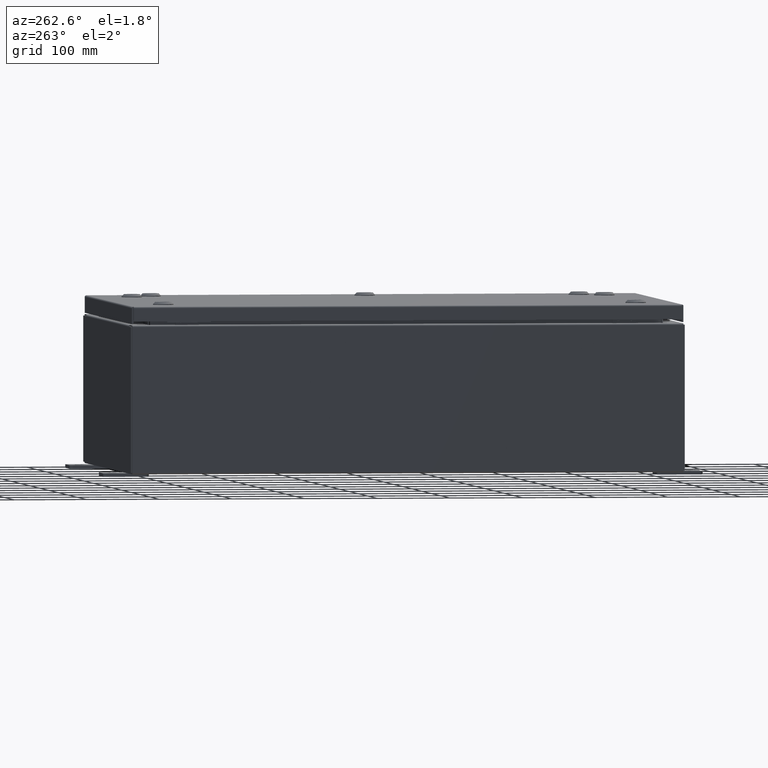
[diagram: clean part render]
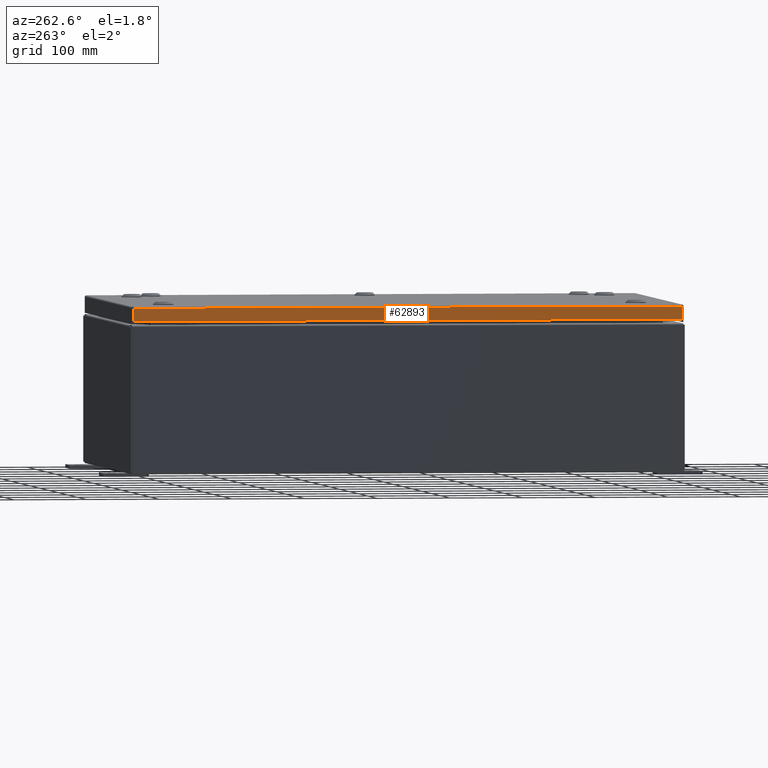
[diagram: same view with one face highlighted and labeled with its STEP entity id]
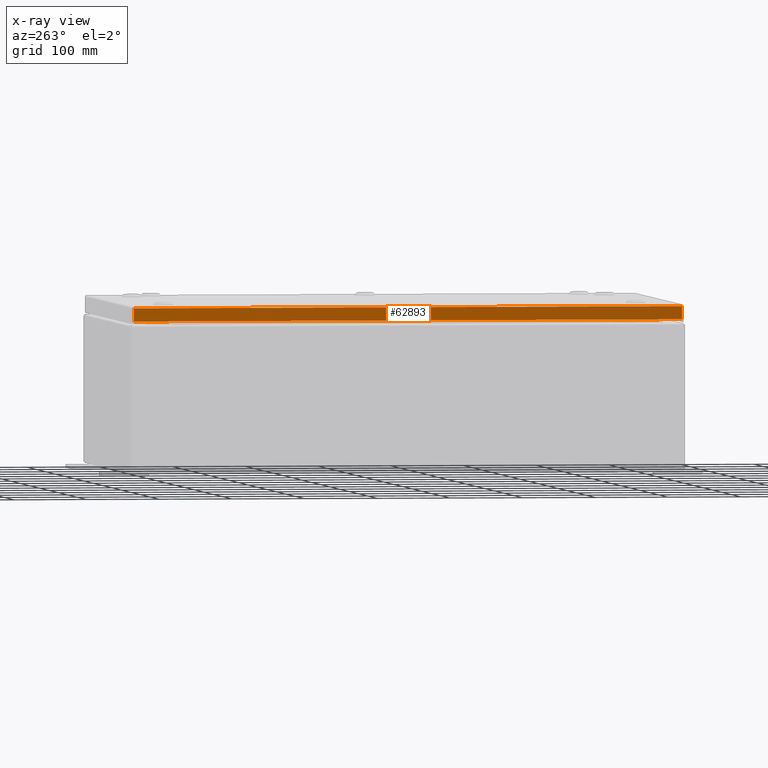
[diagram: x-ray of the same camera — body ghosted, the highlighted face saturated]
A machine part, auxiliary view. The second image highlights one B-rep face of the part: STEP entity #62893.
The next image is the same camera in x-ray: the body ghosted, the highlighted face saturated — about 0% of this face is hidden behind the body in this view.
In plain terms, the highlighted planar face has unit normal (1, 0, -0).
Its self-contained STEP definition (entity closure, byte-faithful):
#851 = LINE ( 'NONE', #19152, #27113 ) ;
#5000 = CARTESIAN_POINT ( 'NONE',  ( -9.937500000000001800, -14.84865786437626100, -0.7949999999999996000 ) ) ;
#7118 = CARTESIAN_POINT ( 'NONE',  ( -9.937500000000000000, 14.84865786437627100, 1.341000291034904900E-013 ) ) ;
#7389 = ORIENTED_EDGE ( 'NONE', *, *, #15064, .F. ) ;
#8066 = CARTESIAN_POINT ( 'NONE',  ( -9.937500000000000000, -14.84865786437626200, -0.08770000000000115200 ) ) ;
#10309 = EDGE_LOOP ( 'NONE', ( #19159, #17233, #7389, #37430 ) ) ;
#11190 = VECTOR ( 'NONE', #63432, 39.37007874015748100 ) ;
#12094 = DIRECTION ( 'NONE',  ( -3.034122441942816500E-015, 6.982962677686265900E-015, -1.000000000000000000 ) ) ;
#14709 = CARTESIAN_POINT ( 'NONE',  ( -9.937500000000000000, -7.269687547993641600E-016, 3.041240542281832100E-014 ) ) ;
#14933 = PLANE ( 'NONE',  #25389 ) ;
#15064 = EDGE_CURVE ( 'NONE', #15185, #61434, #22661, .T. ) ;
#15185 = VERTEX_POINT ( 'NONE', #5000 ) ;
#17233 = ORIENTED_EDGE ( 'NONE', *, *, #28558, .T. ) ;
#17393 = VECTOR ( 'NONE', #28861, 39.37007874015748100 ) ;
#18854 = VERTEX_POINT ( 'NONE', #8066 ) ;
#19152 = CARTESIAN_POINT ( 'NONE',  ( -9.937500000000000000, -14.93749999999999500, -0.08770000000000004200 ) ) ;
#19159 = ORIENTED_EDGE ( 'NONE', *, *, #40800, .F. ) ;
#19858 = DIRECTION ( 'NONE',  ( -3.034122441942816500E-015, 0.0000000000000000000, -1.000000000000000000 ) ) ;
#22412 = EDGE_CURVE ( 'NONE', #18854, #15185, #45241, .T. ) ;
#22661 = LINE ( 'NONE', #33660, #11190 ) ;
#23930 = CARTESIAN_POINT ( 'NONE',  ( -9.937500000000000000, -14.84865786437626400, -0.07469999999999976700 ) ) ;
#25098 = FACE_OUTER_BOUND ( 'NONE', #10309, .T. ) ;
#25389 = AXIS2_PLACEMENT_3D ( 'NONE', #14709, #49543, #19858 ) ;
#27113 = VECTOR ( 'NONE', #53813, 39.37007874015748100 ) ;
#28558 = EDGE_CURVE ( 'NONE', #45524, #61434, #37099, .T. ) ;
#28861 = DIRECTION ( 'NONE',  ( -3.034122441942816500E-015, 6.982962677686265900E-015, -1.000000000000000000 ) ) ;
#33660 = CARTESIAN_POINT ( 'NONE',  ( -9.937500000000001800, -14.93749999999999500, -0.7949999999999997100 ) ) ;
#37099 = LINE ( 'NONE', #7118, #45686 ) ;
#37430 = ORIENTED_EDGE ( 'NONE', *, *, #22412, .F. ) ;
#40800 = EDGE_CURVE ( 'NONE', #45524, #18854, #851, .T. ) ;
#45241 = LINE ( 'NONE', #23930, #17393 ) ;
#45524 = VERTEX_POINT ( 'NONE', #57861 ) ;
#45686 = VECTOR ( 'NONE', #12094, 39.37007874015748100 ) ;
#49543 = DIRECTION ( 'NONE',  ( 1.000000000000000000, 7.315408853326936000E-017, -3.034122441942816500E-015 ) ) ;
#49868 = CARTESIAN_POINT ( 'NONE',  ( -9.937500000000001800, 14.84865786437627800, -0.7949999999999960400 ) ) ;
#53813 = DIRECTION ( 'NONE',  ( 7.315408853326958100E-017, -1.000000000000000000, 7.315408853326900200E-017 ) ) ;
#57861 = CARTESIAN_POINT ( 'NONE',  ( -9.937500000000001800, 14.84865786437627100, -0.08770000000000223500 ) ) ;
#61434 = VERTEX_POINT ( 'NONE', #49868 ) ;
#62893 = ADVANCED_FACE ( 'NONE', ( #25098 ), #14933, .F. ) ;
#63432 = DIRECTION ( 'NONE',  ( -7.315408853326899000E-017, 1.000000000000000000, 1.234475243998914400E-016 ) ) ;